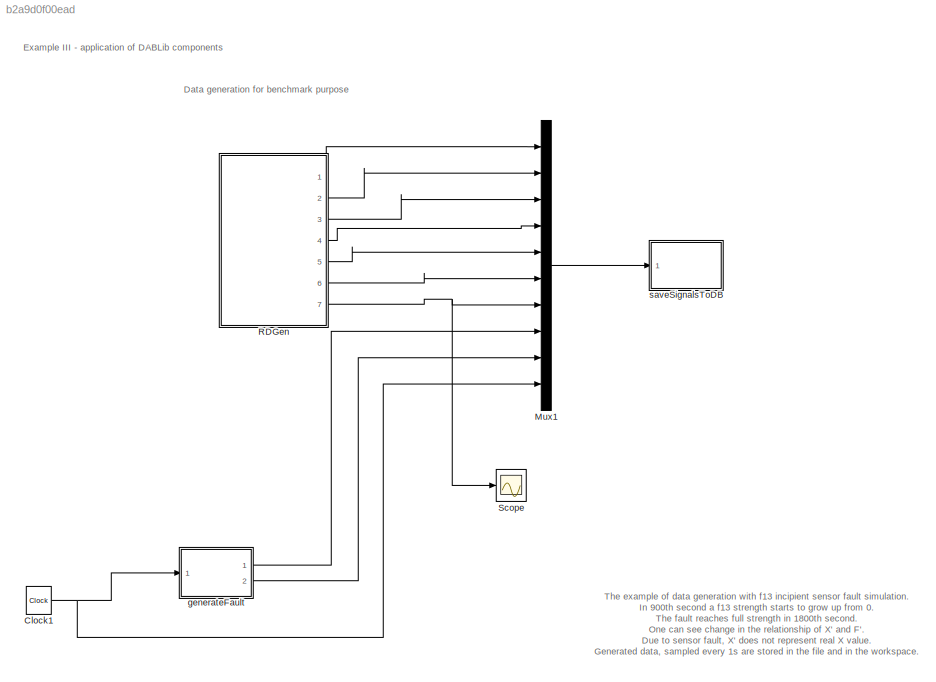
MODEL slx_b2a9d0f00ead
KIND model
CONFIG AbsTol = 1e-6
CONFIG EnableMultiTasking = off
CONFIG FixedStep = 0.0025
CONFIG MaxStep = auto
CONFIG MinStep = auto
CONFIG RelTol = 1e-3
CONFIG SampleTimeConstraint = Unconstrained
CONFIG Solver = ode5
CONFIG SolverName = ode5
CONFIG StartTime = 0.0
CONFIG StopTime = 85500
BLOCK [Clock] Clock1
BLOCK [Mux] Mux1
  Inputs = 10
  Ports = [10, 1]
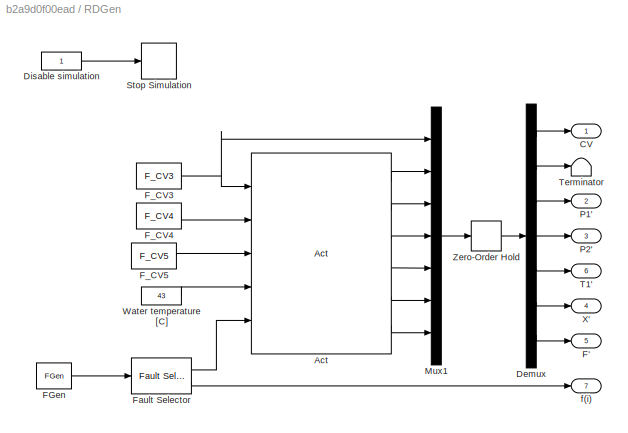
BLOCK [SubSystem] RDGen
  Ports = [0, 7]
  RequestExecContextInheritance = off
  Variant = off
BLOCK [Reference] RDGen/Act  REF=DABLib/Act
  Ports = [5, 6]
  SourceBlock = DABLib/Act
  SourceType = Actuator
BLOCK [Outport] RDGen/CV
  IconDisplay = Port number
  InitialOutput = 0
BLOCK [Demux] RDGen/Demux
  Outputs = 7
  Ports = [1, 7]
BLOCK [Constant] RDGen/Disable simulation
BLOCK [Outport] RDGen/F'
  IconDisplay = Port number
  InitialOutput = 0
  Port = 5
BLOCK [Reference] RDGen/FGen  REF=DABLib/FGen
  Ports = [0, 1]
  SourceBlock = DABLib/FGen
  SourceType = Fault generator
BLOCK [Reference] RDGen/F_CV3  REF=DABLib/DGen/F_CV3
  Ports = [0, 1]
  SourceBlock = DABLib/DGen/F_CV3
  SourceType = Sinus generator
BLOCK [Reference] RDGen/F_CV4  REF=DABLib/DGen/F_CV4
  Ports = [0, 1]
  SourceBlock = DABLib/DGen/F_CV4
  SourceType = Sinus generator
BLOCK [Reference] RDGen/F_CV5  REF=DABLib/DGen/F_CV5
  Ports = [0, 1]
  SourceBlock = DABLib/DGen/F_CV5
  SourceType = Sinus generator
BLOCK [Reference] RDGen/Fault Selector  REF=DABLib/DGen/Fault Selector
  Ports = [1, 2]
  SourceBlock = DABLib/DGen/Fault Selector
  SourceType = SubSystem
BLOCK [Mux] RDGen/Mux1
  Inputs = 7
  Ports = [7, 1]
BLOCK [Outport] RDGen/P1'
  IconDisplay = Port number
  InitialOutput = 0
  Port = 2
BLOCK [Outport] RDGen/P2'
  IconDisplay = Port number
  InitialOutput = 0
  Port = 3
BLOCK [Stop] RDGen/Stop Simulation
BLOCK [Outport] RDGen/T1'
  IconDisplay = Port number
  InitialOutput = 0
  Port = 6
BLOCK [Terminator] RDGen/Terminator
BLOCK [Constant] RDGen/Water temperature [C] 
  Value = 43
BLOCK [Outport] RDGen/X'
  IconDisplay = Port number
  InitialOutput = 0
  Port = 4
BLOCK [ZeroOrderHold] RDGen/Zero-Order Hold
BLOCK [Outport] RDGen/f(i)
  IconDisplay = Port number
  InitialOutput = 0
  Port = 7
BLOCK [Scope] Scope
  NumInputPorts = 1
  Ports = [1]
  ScopeSpecificationString = Simulink.scopes.TimeScopeBlockCfg('CurrentConfiguration', extmgr.ConfigurationSet(extmgr.Configuration('Core','General UI',true),extmgr.Configuration('Core','Source UI',true),extmgr.Configuration('Sources','WiredSimulink',true),extmgr.Configuration('Visuals','Time Domain',true,'SerializedDisplays',{struct('MinYLimReal','-0.125','MaxYLimReal','1.125','YLabelReal','','MinYLimMag','0.00000','MaxYLimM...<+1594ch>
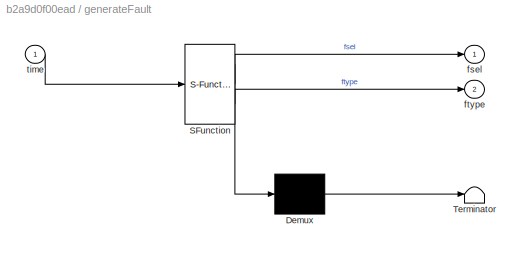
BLOCK [SubSystem] generateFault
  ErrorFcn = Stateflow.Translate.translate
  PermitHierarchicalResolution = ExplicitOnly
  Ports = [1, 2]
  RequestExecContextInheritance = off
  SFBlockType = MATLAB Function
  TreatAsAtomicUnit = on
  Variant = off
BLOCK [Demux] generateFault/ Demux 
  Outputs = 1
  Ports = [1, 1]
BLOCK [S-Function] generateFault/ SFunction 
  EnableBusSupport = on
  FunctionName = sf_sfun
  PortCounts = [1 3]
  Ports = [1, 3]
  SFcnIsStateOwnerBlock = off
  SFunctionDeploymentMode = off
  Tag = Stateflow S-Function RDataGeneration 1
BLOCK [Terminator] generateFault/ Terminator 
BLOCK [Outport] generateFault/fsel
  IconDisplay = Port number
BLOCK [Outport] generateFault/ftype
  IconDisplay = Port number
  Port = 2
BLOCK [Inport] generateFault/time
  IconDisplay = Port number
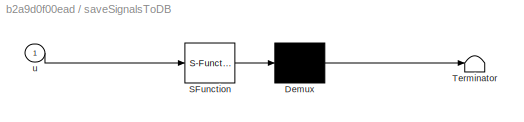
BLOCK [SubSystem] saveSignalsToDB
  ErrorFcn = Stateflow.Translate.translate
  PermitHierarchicalResolution = ExplicitOnly
  Ports = [1]
  RequestExecContextInheritance = off
  SFBlockType = MATLAB Function
  TreatAsAtomicUnit = on
  Variant = off
BLOCK [Demux] saveSignalsToDB/ Demux 
  Outputs = 1
  Ports = [1, 1]
BLOCK [S-Function] saveSignalsToDB/ SFunction 
  EnableBusSupport = on
  FunctionName = sf_sfun
  PortCounts = [1 1]
  Ports = [1, 1]
  SFcnIsStateOwnerBlock = off
  SFunctionDeploymentMode = off
  Tag = Stateflow S-Function RDataGeneration 2
BLOCK [Terminator] saveSignalsToDB/ Terminator 
BLOCK [Inport] saveSignalsToDB/u
  IconDisplay = Port number
ANNOTATION (root): Data generation for benchmark purpose
ANNOTATION (root): Example III - application of DABLib components
ANNOTATION (root): The example of data generation with f13 incipient sensor fault simulation. In 900th second a f13 strength starts to grow up from 0. The fault reaches full strength in 1800th second. One can see change in the relationship of X' and F'. Due to sensor fault, X' does not represent real X value. Generated data, sampled every 1s are stored in the file and in the workspace. Instead of Scope block the on-...<+39ch>
NET Clock1:1 -> Mux1:10, generateFault:1
LINE Mux1:1 -> saveSignalsToDB:1
LINE RDGen/Act:1 -> RDGen/Mux1:2
LINE RDGen/Act:2 -> RDGen/Mux1:3
LINE RDGen/Act:3 -> RDGen/Mux1:4
LINE RDGen/Act:4 -> RDGen/Mux1:5
LINE RDGen/Act:5 -> RDGen/Mux1:6
LINE RDGen/Act:6 -> RDGen/Mux1:7
LINE RDGen/Demux:1 -> RDGen/CV:1
LINE RDGen/Demux:2 -> RDGen/Terminator:1
LINE RDGen/Demux:3 -> RDGen/P1':1
LINE RDGen/Demux:4 -> RDGen/P2':1
LINE RDGen/Demux:5 -> RDGen/T1':1
LINE RDGen/Demux:6 -> RDGen/X':1
LINE RDGen/Demux:7 -> RDGen/F':1
LINE RDGen/Disable simulation:1 -> RDGen/Stop Simulation:1
LINE RDGen/FGen:1 -> RDGen/Fault Selector:1
NET RDGen/F_CV3:1 -> RDGen/Act:1, RDGen/Mux1:1
LINE RDGen/F_CV4:1 -> RDGen/Act:2
LINE RDGen/F_CV5:1 -> RDGen/Act:3
LINE RDGen/Fault Selector:1 -> RDGen/Act:5
LINE RDGen/Fault Selector:2 -> RDGen/f(i):1
LINE RDGen/Mux1:1 -> RDGen/Zero-Order Hold:1
LINE RDGen/Water temperature [C] :1 -> RDGen/Act:4
LINE RDGen/Zero-Order Hold:1 -> RDGen/Demux:1
LINE RDGen:1 -> Mux1:1
LINE RDGen:2 -> Mux1:2
LINE RDGen:3 -> Mux1:3
LINE RDGen:4 -> Mux1:4
LINE RDGen:5 -> Mux1:5
LINE RDGen:6 -> Mux1:6
NET RDGen:7 -> Mux1:7, Scope:1
LINE generateFault:1 -> Mux1:8
LINE generateFault:2 -> Mux1:9
note: NET lines group one-source signal fan-out (src -> all destinations, sorted); 1:1 wires keep LINE
CHART generateFault states=1 transitions=1
  STATE_LABEL 'eML_blk_kernel()'
  STATE_LABEL 'SCRIPT:\nfunction [fsel, ftype] = GetRandomFault(time)\n\ncoder.extrinsic(\'RandomFaultGenerator\');\nDGenBlockAddress = \'RDataGeneration/RDGen\';\n\nfsel = 0;\nftype = 0;\n[fsel, ftype] = RandomFaultGenerator(time, DGenBlockAddress);\n%fprintf(2, "%f", fsel)\n\nend\n'
CHART saveSignalsToDB states=1 transitions=1
  STATE_LABEL 'eML_blk_kernel()'
  STATE_LABEL "SCRIPT:\nfunction saveToDB(u)\n\ncoder.extrinsic('saveToDB');\n\nsaveToDB(u);\n\nend"
